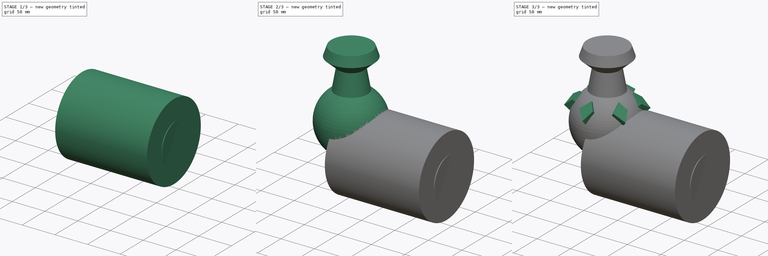
[diagram: build sequence overview — one tinted view per stage of 3, left to right]
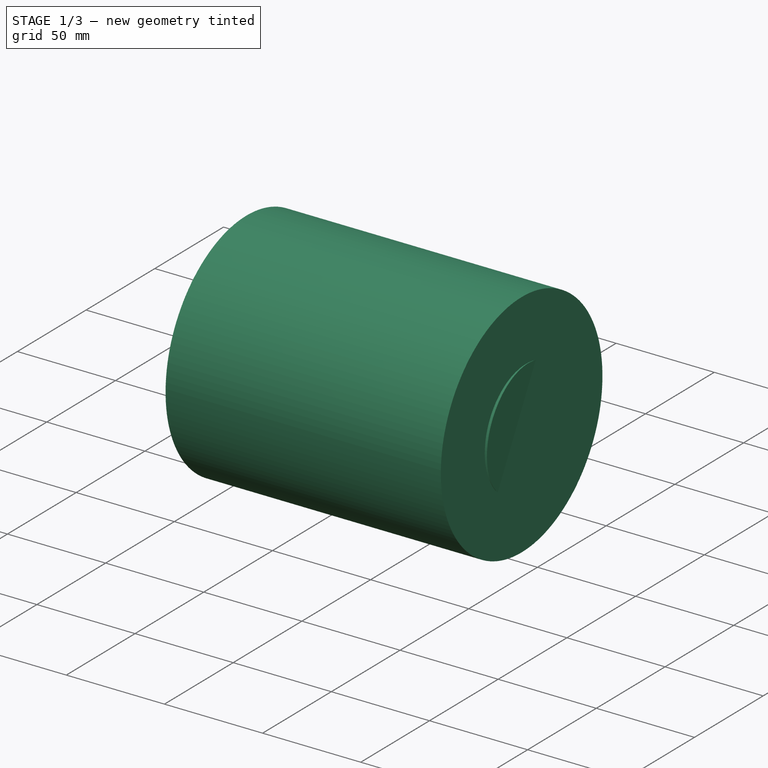
[diagram: stage 1 of 3 — iso view after this stage's code; geometry added in this stage tinted green]
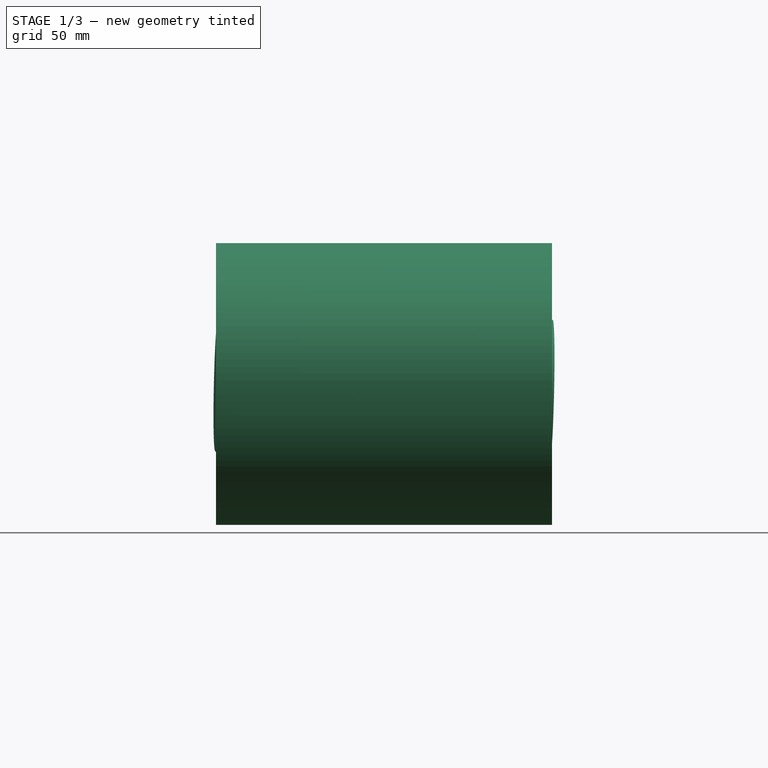
[diagram: stage 1 of 3 — front view after this stage's code; geometry added in this stage tinted green]
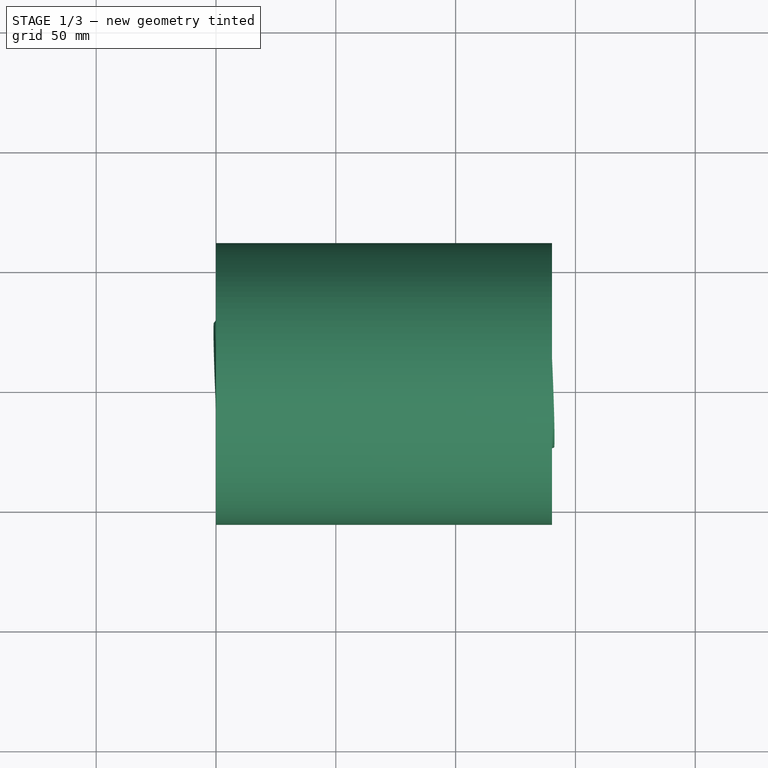
[diagram: stage 1 of 3 — top view after this stage's code; geometry added in this stage tinted green]
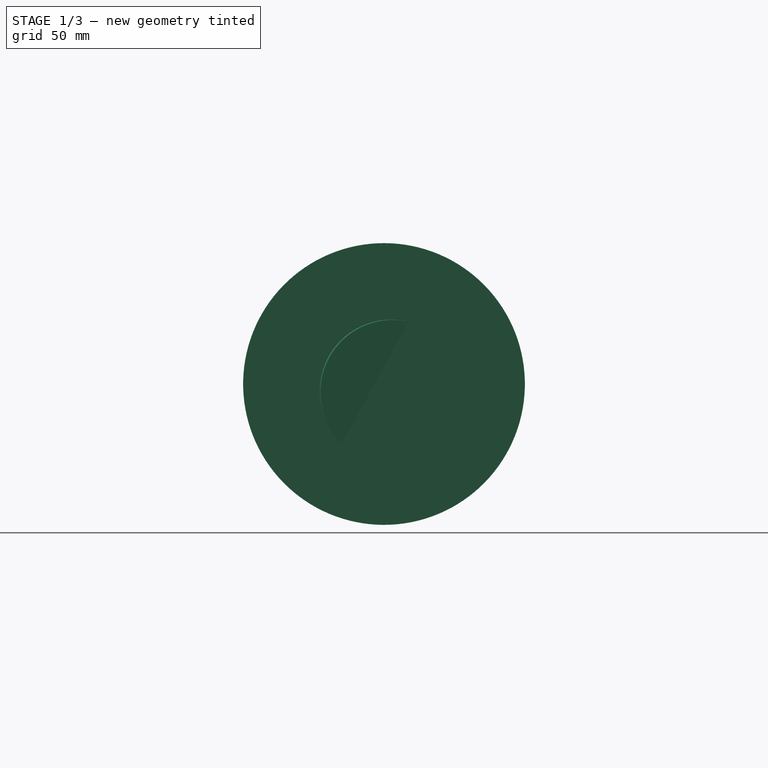
[diagram: stage 1 of 3 — right view after this stage's code; geometry added in this stage tinted green]
FCSTD DOCUMENT  (FreeCAD 0.18R16096 (Git))
Label: pineapple
License: All rights reserved
LicenseURL: http://en.wikipedia.org/wiki/All_rights_reserved
objects: Path::FeaturePython×3, Sketcher::SketchObject×2, Part::FeaturePython×2, PartDesign::Revolution×1, PartDesign::Plane×1, PartDesign::Pad×1, PartDesign::PolarPattern×1, PartDesign::Body×1, Part::Feature×1, App::FeaturePython×1, App::DocumentObjectGroup×1, Path::FeatureCompoundPython×1
note: 12 computed .brp shape members not serialized (recipe doc carries the construction recipe); baked Part::Feature solids carry a one-line shape summary decoded from their .brp

FEATURE [PartDesign::Body] Body
  Group = -> [Sketch,Revolution,DatumPlane,Sketch001,Pad,PolarPattern002]
  Origin = -> Origin
  Tip = -> PolarPattern002
FEATURE [Part::Feature] PolarPattern002001  label="Pineapple"
  Placement = pos=(0,0,0) rot=(0.447214,0.447214,-0.774597;1.82348rad)
  shape: bbox 139.7 x 94.24 x 106.3 mm, 42 faces (baked)
FEATURE [App::FeaturePython] SetupSheet  # Path/CAM operation (typed FeaturePython)
  ClearanceHeightExpression = OpStockZMax+SetupSheet.ClearanceHeightOffset
  ClearanceHeightOffset = 5
  FinalDepthExpression = OpFinalDepth
  HorizRapid = 0
  SafeHeightExpression = OpStockZMax+SetupSheet.SafeHeightOffset
  SafeHeightOffset = 3
  StartDepthExpression = OpStartDepth
  StepDownExpression = OpToolDiameter
  VertRapid = 0
FEATURE [Part::FeaturePython] Clone  label="Model-Pineapple"  # Draft clone (typed FeaturePython)
  AttacherType = Attacher::AttachEngine3D
  Fuse = false
  Objects = -> [PolarPattern002001]
  PathResource = Model
  Placement = pos=(0.289,-1.1e-14,0) rot=(0.678551,0.711696,-0.181817;2.7983rad)
  Scale = (1,1,1)
FEATURE [App::DocumentObjectGroup] Model
  Group = -> [Clone]
FEATURE [Path::FeaturePython] Default_Tool  label="Default Tool"  # Path/CAM operation (typed FeaturePython)
  HorizFeed = 16.6667
  HorizRapid = 0
  SpindleDir = 0
  SpindleSpeed = 3000
  ToolNumber = 1
  VertFeed = 16.6667
  VertRapid = 0
  expr: HorizRapid = SetupSheet.HorizRapid
  expr: VertRapid = SetupSheet.VertRapid
FEATURE [Part::FeaturePython] Stock  # WARN: FeaturePython — macro-defined, semantics opaque (R4)
  Height = 140.238
  Placement = pos=(140.238,2.43033,0) rot=(0,-1,0;1.5708rad)
  Radius = 58.786
  StockType = CreateCylinder
FEATURE [Path::FeaturePython] Surface  # Path/CAM operation (typed FeaturePython)
  Active = true
  Algorithm = 0
  BoundBox = 0
  ClearanceHeight = 63.786
  CompletionMode = 1
  CutterTravelOrientation = 1
  DepthOffset = 0
  DropCutterDir = 0
  DropCutterExtraOffset = (0,0,0)
  FinalDepth = 15
  OpFinalDepth = 46.3187
  OpStartDepth = 84.8175
  OpStockZMax = 58.786
  OpStockZMin = -58.4844
  OpToolDiameter = 6.35
  Optimize = true
  SafeHeight = 61.786
  SampleInterval = 0.1
  ScanType = 1
  StartDepth = 58.786
  StepDown = 20
  StepOver = 75
  ToolController = -> Default_Tool
  expr: ClearanceHeight = OpStockZMax + SetupSheet.ClearanceHeightOffset
  expr: SafeHeight = OpStockZMax + SetupSheet.SafeHeightOffset
  expr: StartDepth = OpStartDepth
FEATURE [Path::FeatureCompoundPython] Operations  # Path/CAM operation (typed FeaturePython)
  Group = -> [Surface]
  UsePlacements = false
FEATURE [Path::FeaturePython] Job  # Path/CAM operation (typed FeaturePython)
  GeometryTolerance = 0.1016
  Model = -> Model
  Operations = -> Operations
  PostProcessor = 9
  SetupSheet = -> SetupSheet
  Stock = -> Stock
  ToolController = -> [Default_Tool]
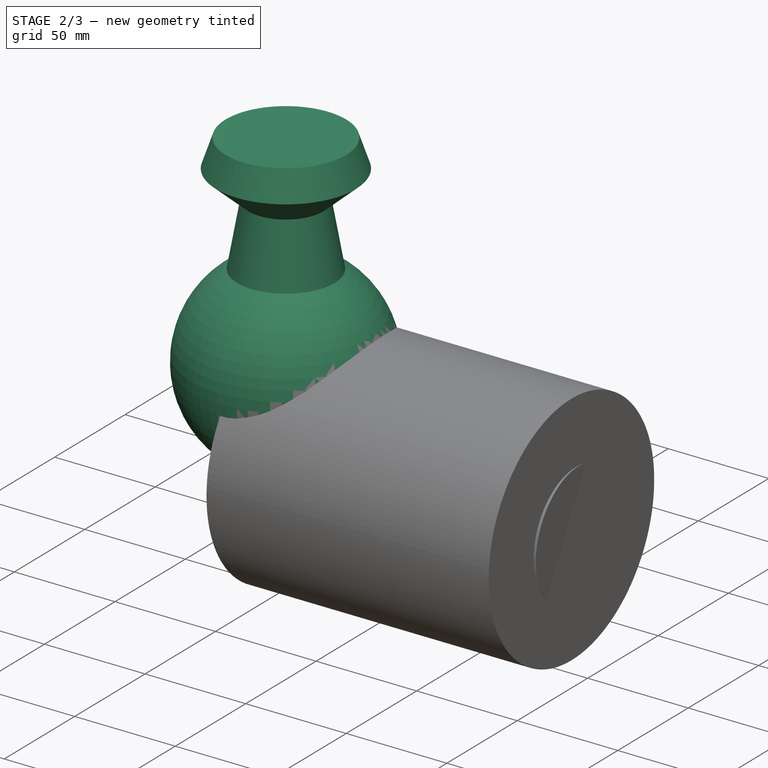
[diagram: stage 2 of 3 — iso view after this stage's code; geometry added in this stage tinted green]
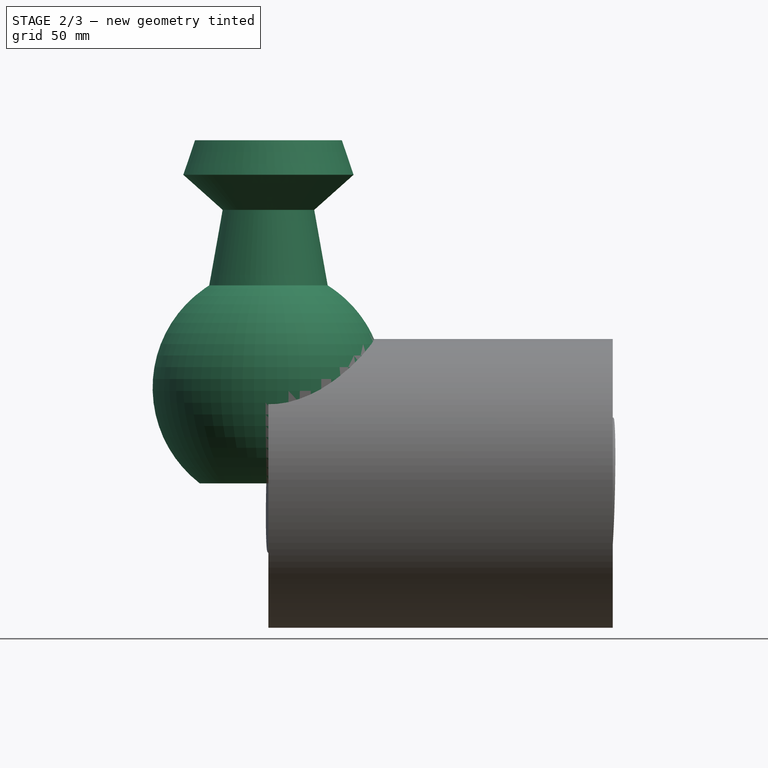
[diagram: stage 2 of 3 — front view after this stage's code; geometry added in this stage tinted green]
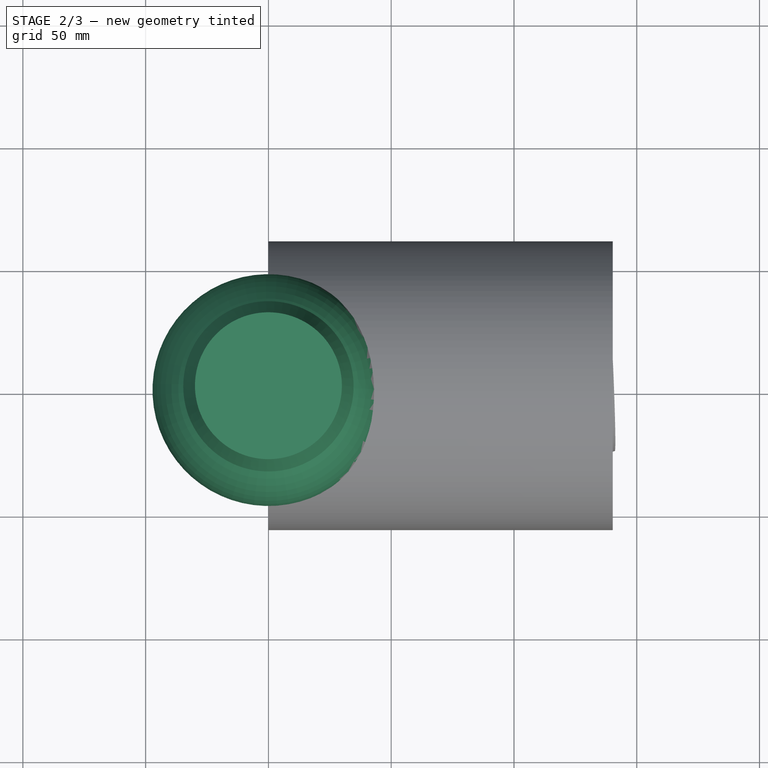
[diagram: stage 2 of 3 — top view after this stage's code; geometry added in this stage tinted green]
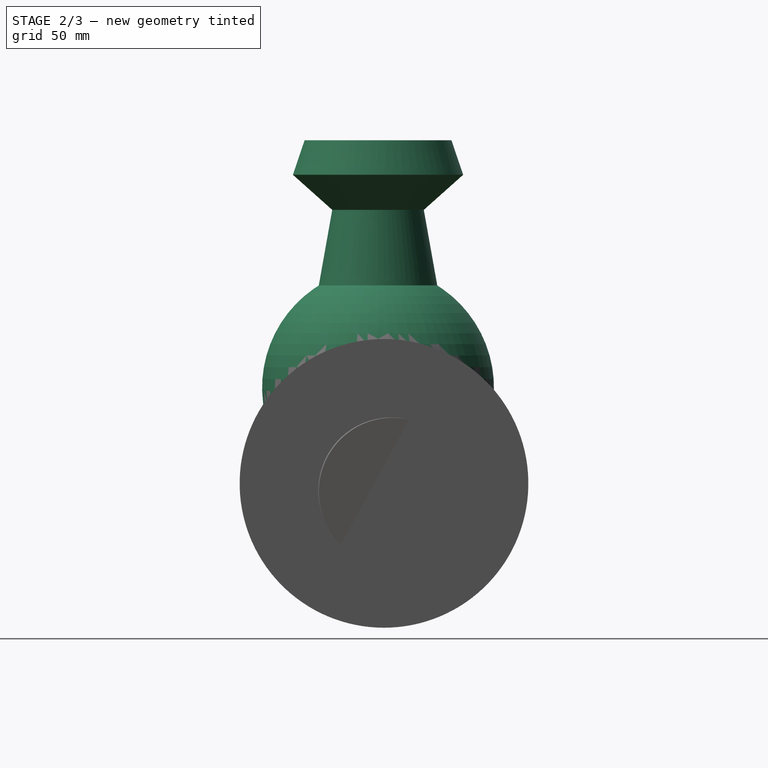
[diagram: stage 2 of 3 — right view after this stage's code; geometry added in this stage tinted green]
FEATURE [Sketcher::SketchObject] Sketch
  MapMode = 5
  Placement = pos=(0,0,0) rot=(1,0,0;1.5708rad)
  Support = -> [XZ_Plane]
  sketch-geometry (7):
    g0: LineSegment StartX=0 StartY=0 StartZ=0 EndX=0 EndY=139.725 EndZ=0
    g1: LineSegment StartX=0 StartY=139.725 StartZ=0 EndX=29.9133 EndY=139.725 EndZ=0
    g2: LineSegment StartX=29.9133 StartY=139.725 StartZ=0 EndX=34.6774 EndY=125.673 EndZ=0
    g3: LineSegment StartX=34.6774 StartY=125.673 StartZ=0 EndX=18.653 EndY=111.38 EndZ=0
    g4: LineSegment StartX=18.653 StartY=111.38 StartZ=0 EndX=24.1299 EndY=80.6118 EndZ=0
    g5: ArcOfCircle CenterX=-1.8597 CenterY=38.9742 CenterZ=0 NormalX=0 NormalY=0 NormalZ=1 AngleXU=0 Radius=49.083 StartAngle=5.36575 EndAngle=7.29597
    g6: LineSegment StartX=0 StartY=-1.42e-14 StartZ=0 EndX=27.9757 EndY=-1.42e-14 EndZ=0
  constraints (14):
    c: Coincident(g-1,g0)
    c: Vertical(g0)
    c: Coincident(g0,g1)
    c: Coincident(g1,g2)
    c: Coincident(g2,g3)
    c: Coincident(g3,g4)
    c: Coincident(g6,g-1)
    c: Coincident(g6,g5)
    c: Horizontal(g6)
    c: Coincident(g4,g5)
    c: DistanceX(g6,g6) = 27.9757
    c: Horizontal(g1)
    c: Radius(g5) = 49.083
    c: Distance(g3,g0) = 18.653
FEATURE [PartDesign::Revolution] Revolution
  Angle = 360
  Axis = (0,-1.035e-13,1)
  Base = (0,0,0)
  Placement = pos=(0,0,0) rot=(1,0,0;1.5708rad)
  Profile = -> Sketch
  ReferenceAxis = -> Sketch [V_Axis]
  Reversed = true
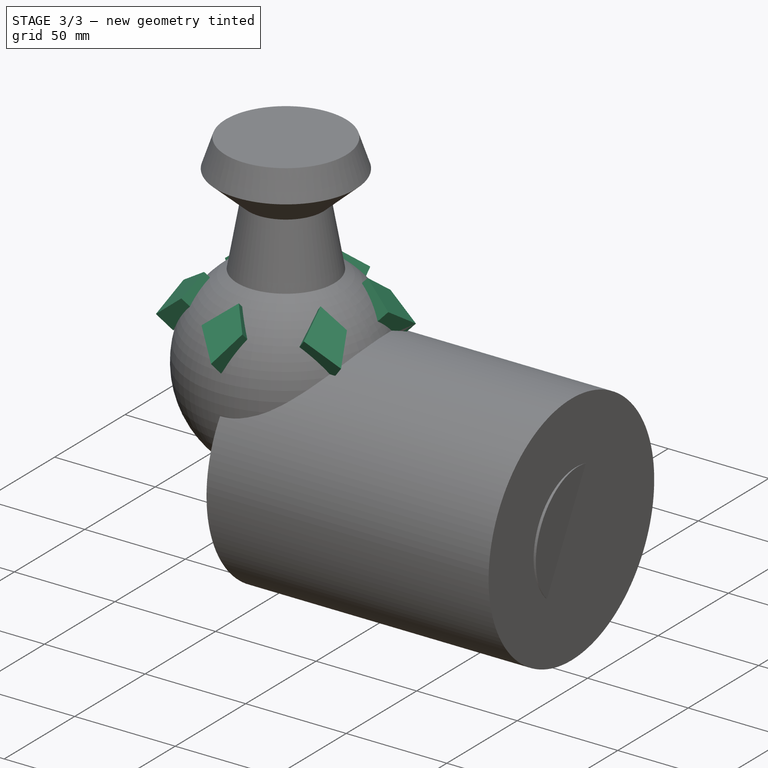
[diagram: stage 3 of 3 — iso view after this stage's code; geometry added in this stage tinted green]
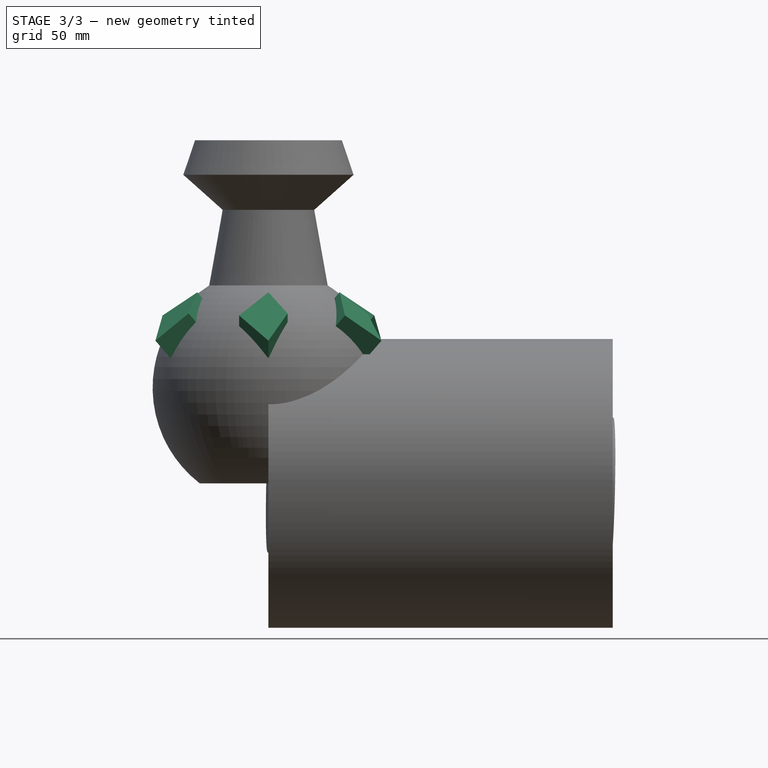
[diagram: stage 3 of 3 — front view after this stage's code; geometry added in this stage tinted green]
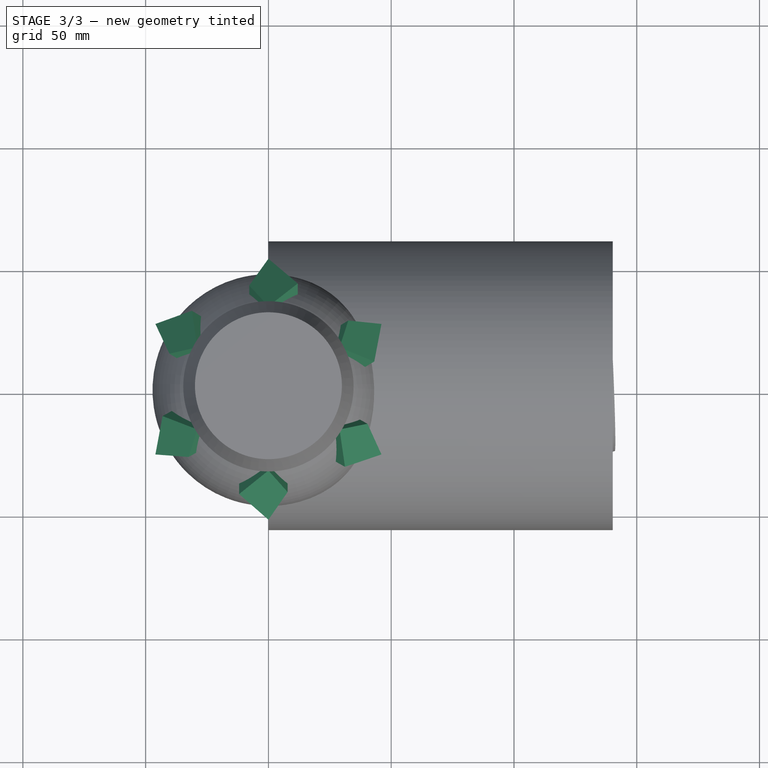
[diagram: stage 3 of 3 — top view after this stage's code; geometry added in this stage tinted green]
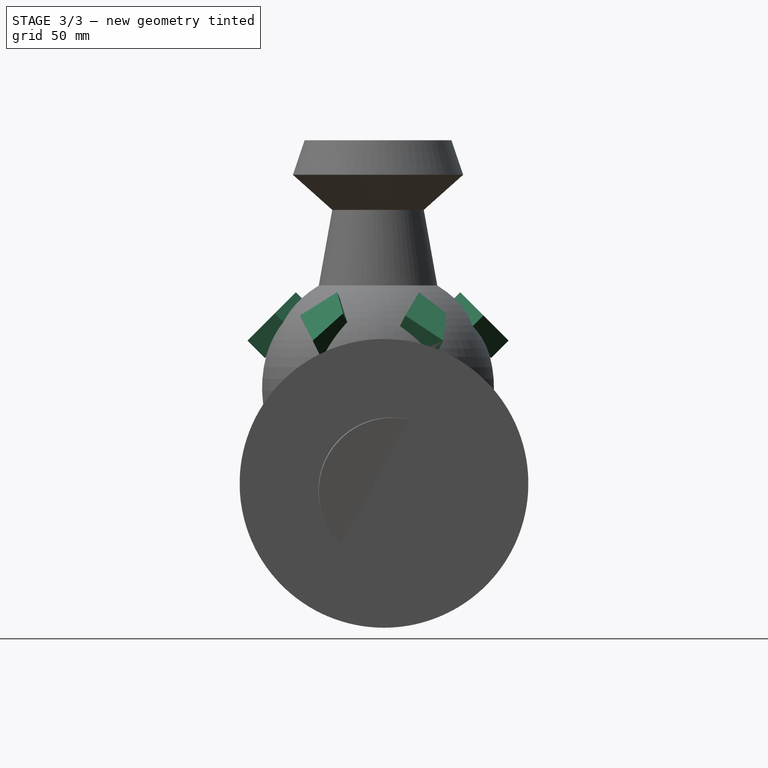
[diagram: stage 3 of 3 — right view after this stage's code; geometry added in this stage tinted green]
FEATURE [PartDesign::Plane] DatumPlane
  AttachmentOffset = pos=(0,-71,0) rot=(1,0,0;0.785398rad)
  Length = 120.401
  MapMode = 45
  Placement = pos=(3.6e-15,-71,40.2751) rot=(1,0,0;0.785398rad)
  ResizeMode = 0
  Support = -> [Revolution]
  Width = 207.171
FEATURE [Sketcher::SketchObject] Sketch001
  MapMode = 5
  Placement = pos=(3.6e-15,-71,40.2751) rot=(1,0,0;0.785398rad)
  Support = -> [DatumPlane]
  sketch-geometry (4):
    g0: LineSegment StartX=0 StartY=53.1088 StartZ=0 EndX=-11.9322 EndY=39.7542 EndZ=0
    g1: LineSegment StartX=-11.9322 StartY=39.7542 StartZ=0 EndX=0 EndY=25.2383 EndZ=0
    g2: LineSegment StartX=0 StartY=25.2383 StartZ=0 EndX=7.80947 EndY=40.9155 EndZ=0
    g3: LineSegment StartX=7.80947 StartY=40.9155 StartZ=0 EndX=0 EndY=53.1088 EndZ=0
  constraints (6):
    c: Coincident(g0,g1)
    c: PointOnObject(g1,g-2)
    c: Coincident(g1,g2)
    c: Coincident(g2,g3)
    c: PointOnObject(g3,g-2)
    c: Coincident(g0,g3)
FEATURE [PartDesign::Pad] Pad
  BaseFeature = -> Revolution
  Length = 10
  Length2 = 100
  Placement = pos=(0,0,0) rot=(1,0,0;1.5708rad)
  Profile = -> Sketch001
  Reversed = true
  Type = 0
FEATURE [PartDesign::PolarPattern] PolarPattern002
  Angle = 360
  Axis = -> Z_Axis
  BaseFeature = -> Pad
  Occurrences = 6
  Originals = -> [Pad]
  Placement = pos=(0,0,0) rot=(1,0,0;1.5708rad)
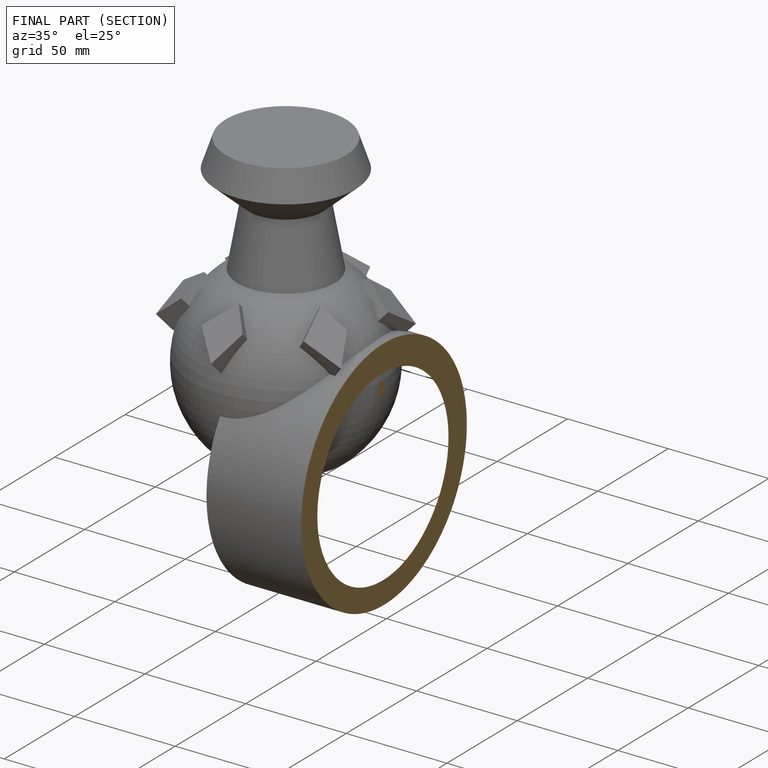
[diagram: finished part — half-section view (interior)]
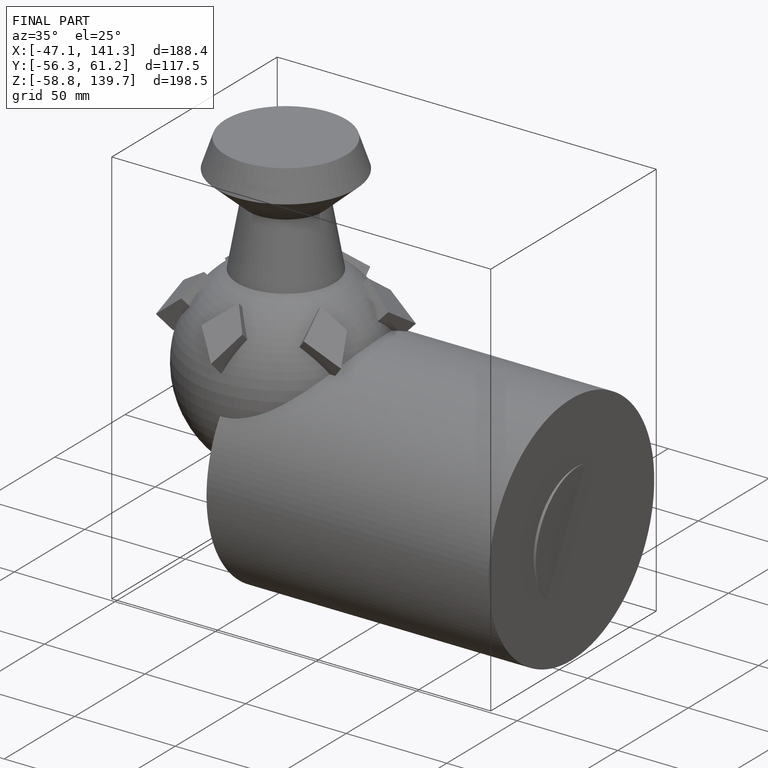
[diagram: finished part — iso view with bounding-box wireframe]
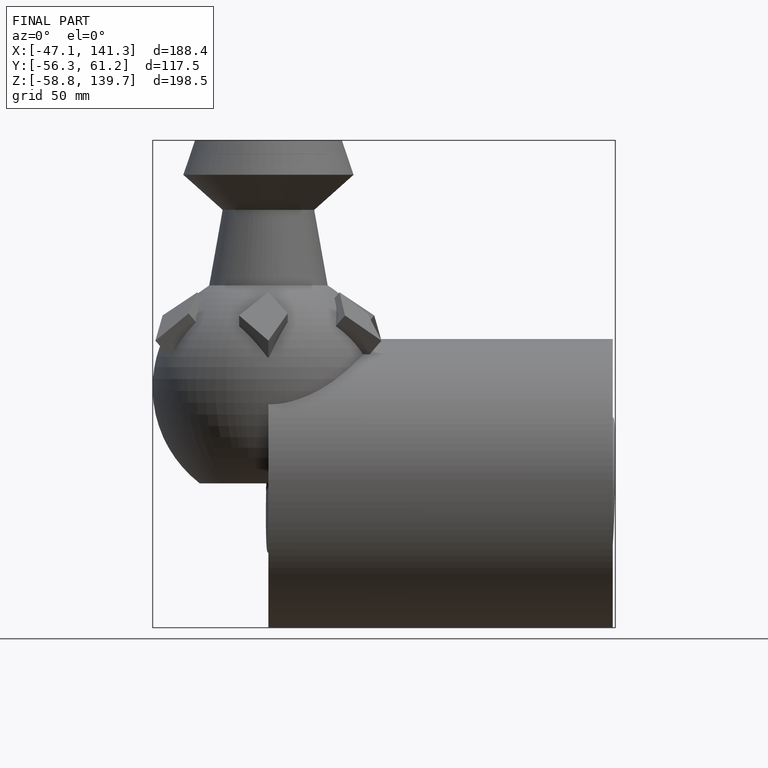
[diagram: finished part — front view with bounding-box wireframe]
